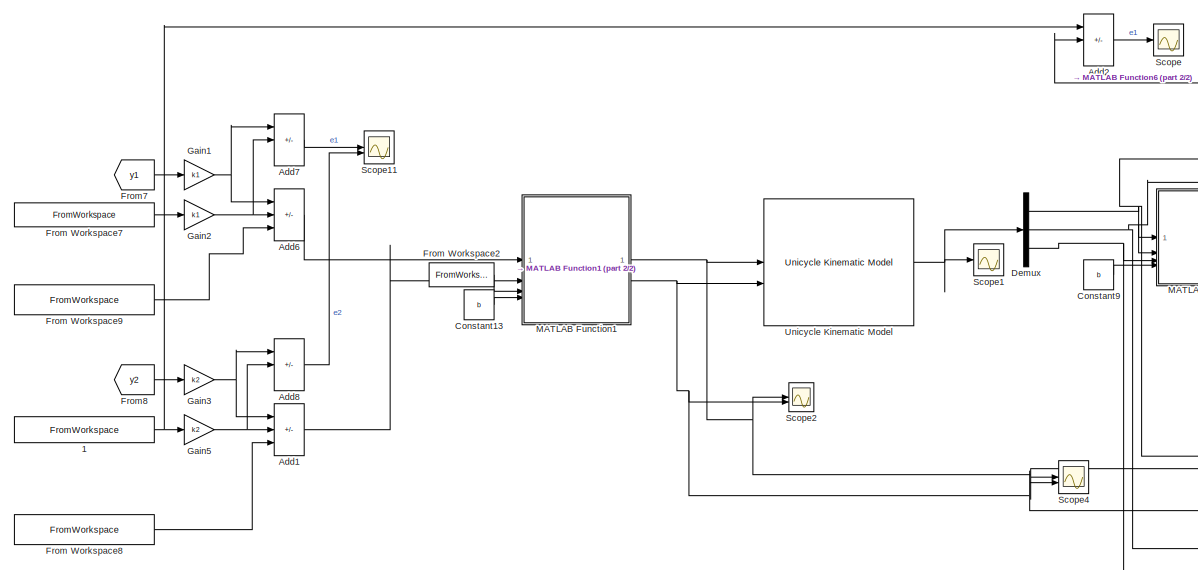
[diagram: root canvas - part 1/2, center side, full height]
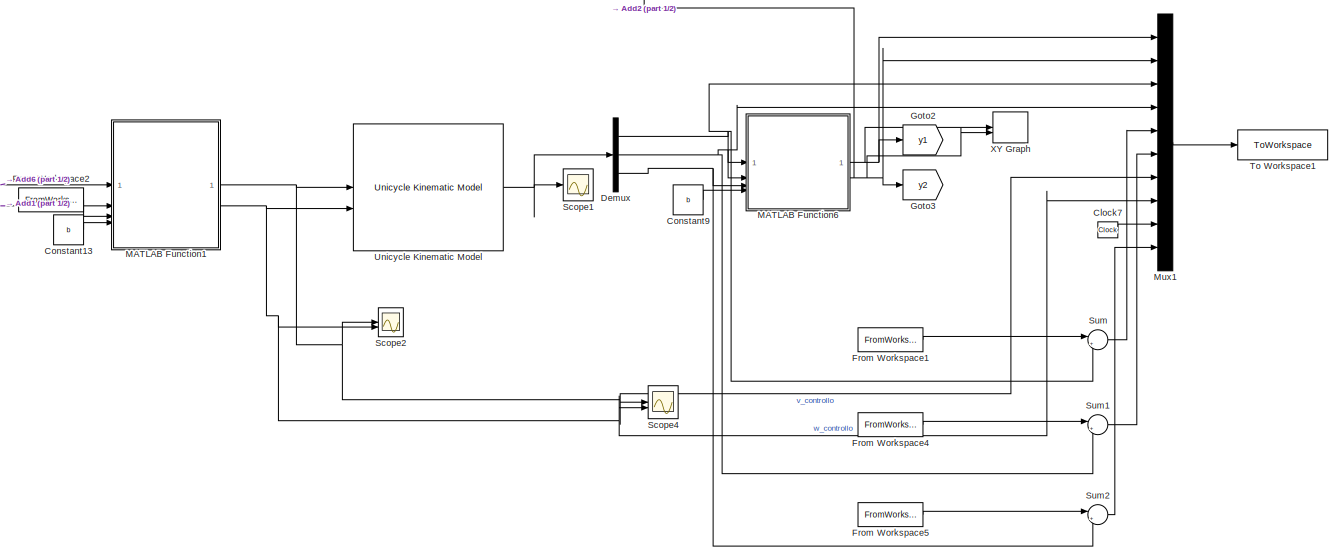
[diagram: root canvas - part 2/2, most of the canvas]
MODEL slx_031e685b0324
KIND model
CONFIG AbsTol = auto
CONFIG EnableMultiTasking = off
CONFIG FixedStep = auto
CONFIG MaxStep = auto
CONFIG MinStep = auto
CONFIG RelTol = 1e-3
CONFIG SampleTimeConstraint = Unconstrained
CONFIG SolverName = VariableStepAuto
CONFIG StartTime = 0.0
CONFIG StopTime = Tsca
BLOCK [FromWorkspace]  1
  VariableName = y2_d
BLOCK [Sum] Add1
  IconShape = rectangular
  Inputs = -++
BLOCK [Sum] Add2
  IconShape = rectangular
  Inputs = -++
BLOCK [Sum] Add6
  IconShape = rectangular
  Inputs = -++
BLOCK [Sum] Add7
  IconShape = rectangular
  Inputs = -++
BLOCK [Sum] Add8
  IconShape = rectangular
  Inputs = -++
BLOCK [Clock] Clock7
BLOCK [Constant] Constant13
  Value = b
BLOCK [Constant] Constant9
  Value = b
BLOCK [Demux] Demux
  Outputs = 3
BLOCK [FromWorkspace] From Workspace1
  VariableName = x_d
BLOCK [FromWorkspace] From Workspace2
  VariableName = theta_d
BLOCK [FromWorkspace] From Workspace4
  VariableName = y_d
BLOCK [FromWorkspace] From Workspace5
  VariableName = theta_d
BLOCK [FromWorkspace] From Workspace7
  VariableName = y1_d
BLOCK [FromWorkspace] From Workspace8
  VariableName = y2_dot_d
BLOCK [FromWorkspace] From Workspace9
  VariableName = y1_dot_d
BLOCK [From] From7
  GotoTag = y1
BLOCK [From] From8
  GotoTag = y2
BLOCK [Gain] Gain1
  Gain = k1
BLOCK [Gain] Gain2
  Gain = k1
BLOCK [Gain] Gain3
  Gain = k2
BLOCK [Gain] Gain5
  Gain = k2
BLOCK [Goto] Goto2
  GotoTag = y1
BLOCK [Goto] Goto3
  GotoTag = y2
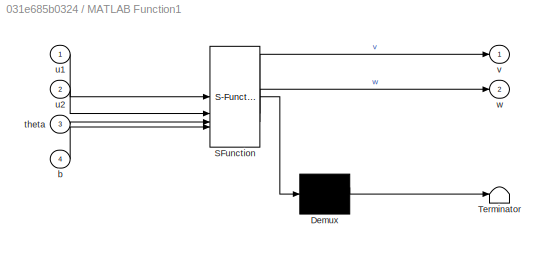
BLOCK [SubSystem] MATLAB Function1
  ErrorFcn = Stateflow.Translate.translate
  LibrarySourceBlock = simulink/User-Defined\nFunctions/MATLAB Function
  PermitHierarchicalResolution = ExplicitOnly
  SFBlockType = MATLAB Function
  TreatAsAtomicUnit = on
BLOCK [Demux] MATLAB Function1/ Demux 
  Outputs = 1
BLOCK [S-Function] MATLAB Function1/ SFunction 
  EnableBusSupport = on
  FunctionName = sf_sfun
  PortCounts = [4 3]
  SFcnIsStateOwnerBlock = off
  SFunctionDeploymentMode = off
  Tag = Stateflow S-Function 1
BLOCK [Terminator] MATLAB Function1/ Terminator 
BLOCK [Inport] MATLAB Function1/b
  Port = 4
BLOCK [Inport] MATLAB Function1/theta
  Port = 3
BLOCK [Inport] MATLAB Function1/u1
BLOCK [Inport] MATLAB Function1/u2
  Port = 2
BLOCK [Outport] MATLAB Function1/v
BLOCK [Outport] MATLAB Function1/w
  Port = 2
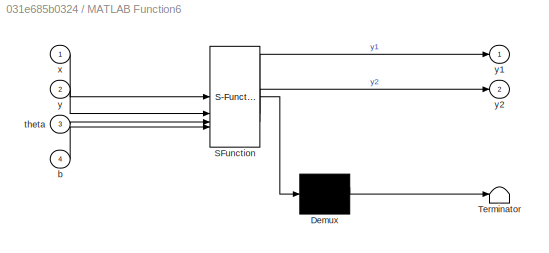
BLOCK [SubSystem] MATLAB Function6
  ErrorFcn = Stateflow.Translate.translate
  LibrarySourceBlock = simulink/User-Defined\nFunctions/MATLAB Function
  PermitHierarchicalResolution = ExplicitOnly
  SFBlockType = MATLAB Function
  TreatAsAtomicUnit = on
BLOCK [Demux] MATLAB Function6/ Demux 
  Outputs = 1
BLOCK [S-Function] MATLAB Function6/ SFunction 
  EnableBusSupport = on
  FunctionName = sf_sfun
  PortCounts = [4 3]
  SFcnIsStateOwnerBlock = off
  SFunctionDeploymentMode = off
  Tag = Stateflow S-Function 2
BLOCK [Terminator] MATLAB Function6/ Terminator 
BLOCK [Inport] MATLAB Function6/b
  Port = 4
BLOCK [Inport] MATLAB Function6/theta
  Port = 3
BLOCK [Inport] MATLAB Function6/x
BLOCK [Inport] MATLAB Function6/y
  Port = 2
BLOCK [Outport] MATLAB Function6/y1
BLOCK [Outport] MATLAB Function6/y2
  Port = 2
BLOCK [Mux] Mux1
  DisplayOption = bar
  Inputs = 10
BLOCK [Scope] Scope
  Floating = off
  NumInputPorts = 1
  ScopeSpecificationString = Simulink.scopes.TimeScopeBlockCfg('CurrentConfiguration', extmgr.ConfigurationSet(extmgr.Configuration('Core','General UI',true),extmgr.Configuration('Core','Source UI',true),extmgr.Configuration('Sources','WiredSimulink',true,'DataLoggingVariableName','ScopeData1'),extmgr.Configuration('Visuals','Time Domain',true,'SerializedDisplays',{struct('MinYLimReal','-0.02914','MaxYLimReal','0.00714','YLab...<+1525ch>
BLOCK [Scope] Scope1
  Floating = off
  NumInputPorts = 1
  ScopeSpecificationString = Simulink.scopes.TimeScopeBlockCfg('CurrentConfiguration', extmgr.ConfigurationSet(extmgr.Configuration('Core','General UI',true),extmgr.Configuration('Core','Source UI',true),extmgr.Configuration('Sources','WiredSimulink',true,'DataLoggingVariableName','ScopeData6'),extmgr.Configuration('Visuals','Time Domain',true,'SerializedDisplays',{struct('MinYLimReal','-0.1949','MaxYLimReal','0.7984','YLabel...<+1631ch>
BLOCK [Scope] Scope11
  Floating = off
  NumInputPorts = 2
  ScopeSpecificationString = Simulink.scopes.TimeScopeBlockCfg('CurrentConfiguration', extmgr.ConfigurationSet(extmgr.Configuration('Core','General UI',true),extmgr.Configuration('Core','Source UI',true),extmgr.Configuration('Sources','WiredSimulink',true,'DataLoggingVariableName','ScopeData1'),extmgr.Configuration('Visuals','Time Domain',true,'SerializedDisplays',{struct('MinYLimReal','-0.00029','MaxYLimReal','0.00096','YLab...<+1554ch>
BLOCK [Scope] Scope2
  Floating = off
  NumInputPorts = 2
  ScopeSpecificationString = Simulink.scopes.TimeScopeBlockCfg('CurrentConfiguration', extmgr.ConfigurationSet(extmgr.Configuration('Core','General UI',true),extmgr.Configuration('Core','Source UI',true),extmgr.Configuration('Sources','WiredSimulink',true,'DataLoggingVariableName','ScopeData2'),extmgr.Configuration('Visuals','Time Domain',true,'SerializedDisplays',{struct('MinYLimReal','-0.44708','MaxYLimReal','1.47633','YLab...<+1660ch>
BLOCK [Scope] Scope4
  Floating = off
  NumInputPorts = 2
  ScopeSpecificationString = Simulink.scopes.TimeScopeBlockCfg('CurrentConfiguration', extmgr.ConfigurationSet(extmgr.Configuration('Core','General UI',true),extmgr.Configuration('Core','Source UI',true),extmgr.Configuration('Sources','WiredSimulink',true,'DataLoggingVariableName','ScopeData7'),extmgr.Configuration('Visuals','Time Domain',true,'SerializedDisplays',{struct('MinYLimReal','-1.21678','MaxYLimReal','1.24183','YLab...<+1568ch>
BLOCK [Sum] Sum
  Inputs = |+-
BLOCK [Sum] Sum1
  Inputs = |+-
BLOCK [Sum] Sum2
  Inputs = |+-
BLOCK [ToWorkspace] To Workspace1
  FixptAsFi = on
  MaxDataPoints = inf
  SampleTime = -1
  VariableName = out1
BLOCK [Reference] Unicycle Kinematic Model  REF=robotmobilelib/Unicycle Kinematic Model
  SourceBlock = robotmobilelib/Unicycle Kinematic Model
  SourceType = Unicycle Kinematic Model
BLOCK [Record] XY Graph
  CompatibilityTag = XY
  FileSettingsInternal = {"entries":[{"content":{"excelSettings":{"content":{},"type":"Streamout.ExcelSettings"}},"type":"Streamout.FileSettingStorage","uuid":""}],"packageUris":["http:\/\/schema.mathworks.com\/mf0\/streamout_blocks\/R2020a"],"version":"1.0"}
  Layout = [1 1]
  SignalsInternal = {"entries":[{"content":{"signals":[{"content":{"blockPath":[],"dimensions":[1],"domain":"","lineColor":"#a2142f","plots":[ 1 ],"port":1,"sid":[""],"signalID":1,"signalName":"MATLAB Function6:1"},"type":"RecordBlkView.Signal","uuid":""},{"content":{"blockPath":[],"dimensions":[1],"domain":"","lineColor":"#139fff","plots":[ 1 ],"port":2,"sid":[""],"signalID":2,"signalName":"MATLAB Function6:2"},"typ...<+182ch>
  VisualizationBindings = {"xyplotplugin":{"info":[{"series":[{"bindingParametersList":[{"parameter":"X-Axis","signalID":1,"signalName":"MATLAB Function6:1"},{"parameter":"Y-Axis","signalID":2,"signalName":"MATLAB Function6:2"}],"seriesID":0}],"subplotID":1}]}}
NET  1:1 -> Add2:1, Gain5:1
LINE Add1:1 -> MATLAB Function1:2
LINE Add2:1 -> Scope:1
LINE Add6:1 -> MATLAB Function1:1
LINE Add7:1 -> Scope11:1
LINE Add8:1 -> Scope11:2
LINE Clock7:1 -> Mux1:9
LINE Constant13:1 -> MATLAB Function1:4
LINE Constant9:1 -> MATLAB Function6:4
NET Demux:1 -> MATLAB Function6:1, Mux1:3, Sum:2
NET Demux:2 -> MATLAB Function6:2, Mux1:4, Sum1:2
NET Demux:3 -> MATLAB Function6:3, Sum2:2
LINE From Workspace1:1 -> Sum:1
LINE From Workspace2:1 -> MATLAB Function1:3
LINE From Workspace4:1 -> Sum1:1
LINE From Workspace5:1 -> Sum2:1
LINE From Workspace7:1 -> Gain2:1
LINE From Workspace8:1 -> Add1:3
LINE From Workspace9:1 -> Add6:3
LINE From7:1 -> Gain1:1
LINE From8:1 -> Gain3:1
NET Gain1:1 -> Add6:1, Add7:1
NET Gain2:1 -> Add6:2, Add7:2
NET Gain3:1 -> Add1:1, Add8:1
NET Gain5:1 -> Add1:2, Add8:2
NET MATLAB Function1:1 -> Mux1:7, Scope2:1, Scope4:1, Unicycle Kinematic Model:1
NET MATLAB Function1:2 -> Mux1:8, Scope2:2, Scope4:2, Unicycle Kinematic Model:2
NET MATLAB Function6:1 -> Goto2:1, Mux1:1, XY Graph:1
NET MATLAB Function6:2 -> Add2:2, Goto3:1, Mux1:2, XY Graph:2
LINE Mux1:1 -> To Workspace1:1
LINE Sum1:1 -> Mux1:6
LINE Sum2:1 -> Mux1:10
LINE Sum:1 -> Mux1:5
NET Unicycle Kinematic Model:1 -> Demux:1, Scope1:1
note: NET lines group one-source signal fan-out (src -> all destinations, sorted); 1:1 wires keep LINE
CHART MATLAB Function1 states=1 transitions=1
  STATE_LABEL 'eML_blk_kernel()'
  STATE_LABEL "SCRIPT:\nfunction [v,w] = T_inv(u1,u2,theta,b)\n\nT=[cos(theta)  -b*sin(theta)\n    sin(theta)  b*cos(theta)];\n\nvw = inv(T) * [u1; u2];  % usa ; oppure [u1 u2]' per colonna\nv  = vw(1);\nw  = vw(2);\nend\n\n"
CHART MATLAB Function6 states=1 transitions=1
  STATE_LABEL 'eML_blk_kernel()'
  STATE_LABEL 'SCRIPT:\nfunction [y1 , y2] = T(x,y,theta,b)\n\ny1 = x + b*cos(theta);\ny2 = y + b*sin(theta);\n\nend\n\n'
CHART  states=0 transitions=0
CHART  states=0 transitions=0
